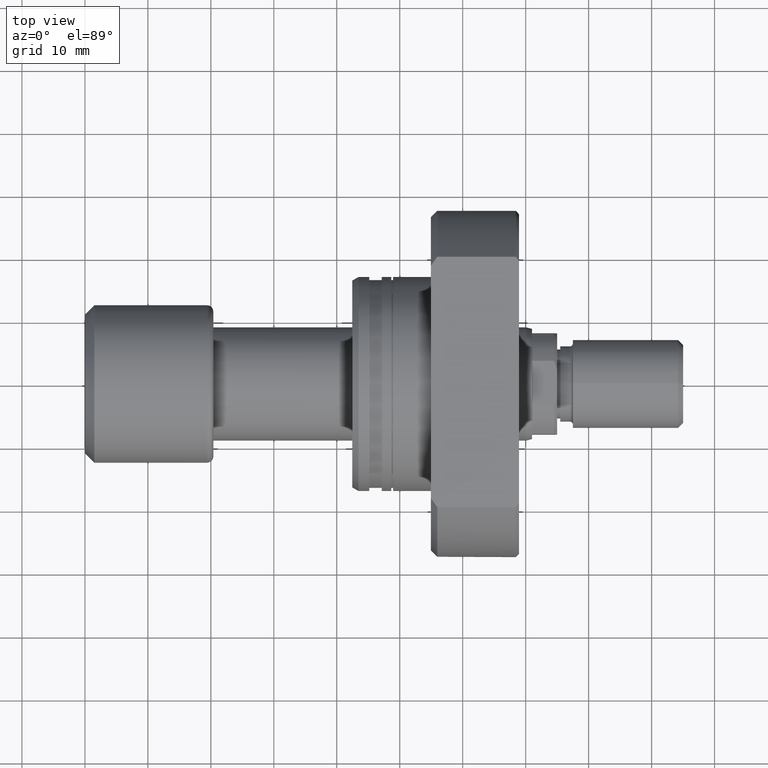
[diagram: clean part render]
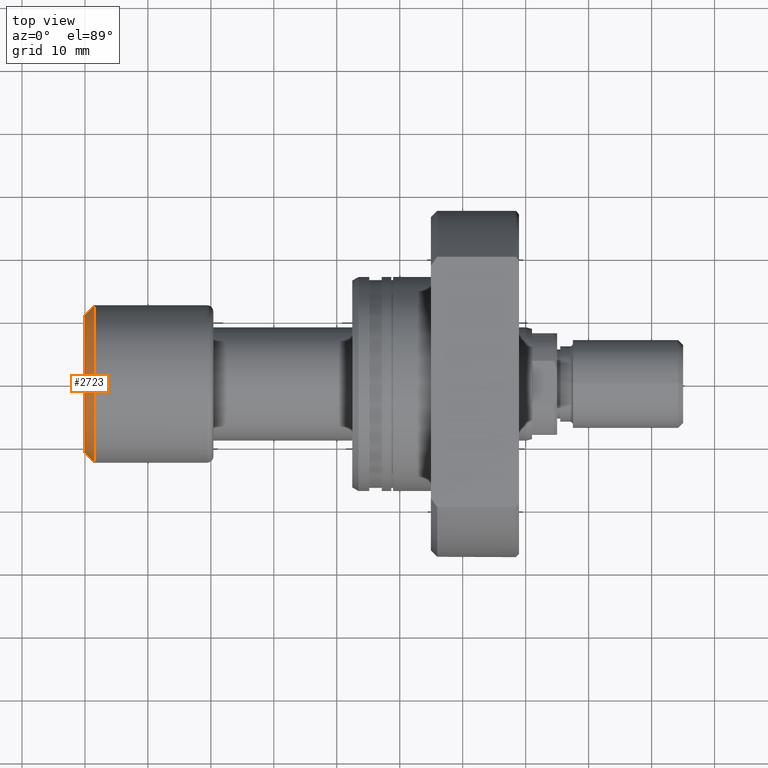
[diagram: same view with one face highlighted and labeled with its STEP entity id]
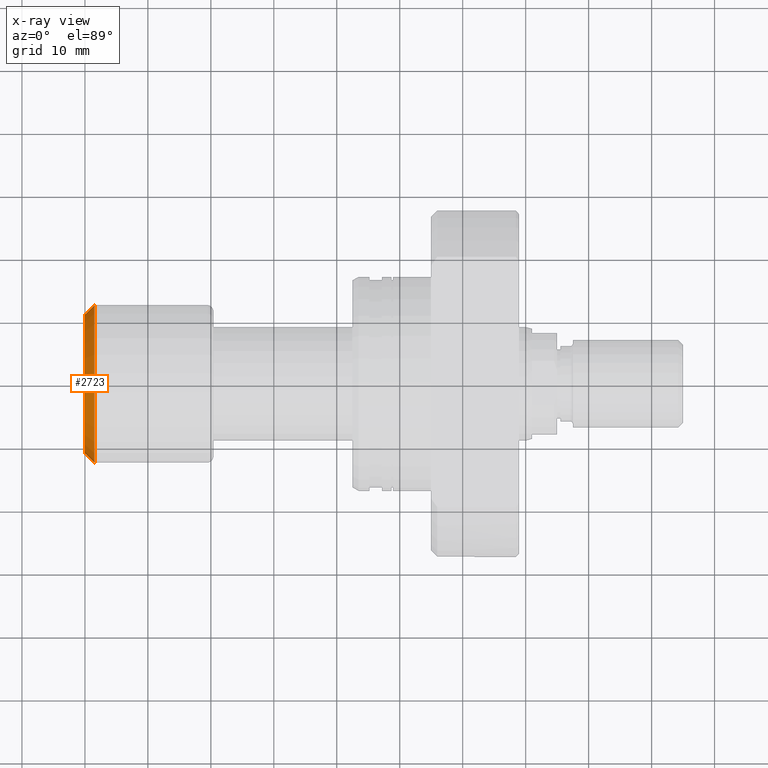
[diagram: x-ray of the same camera — body ghosted, the highlighted face saturated]
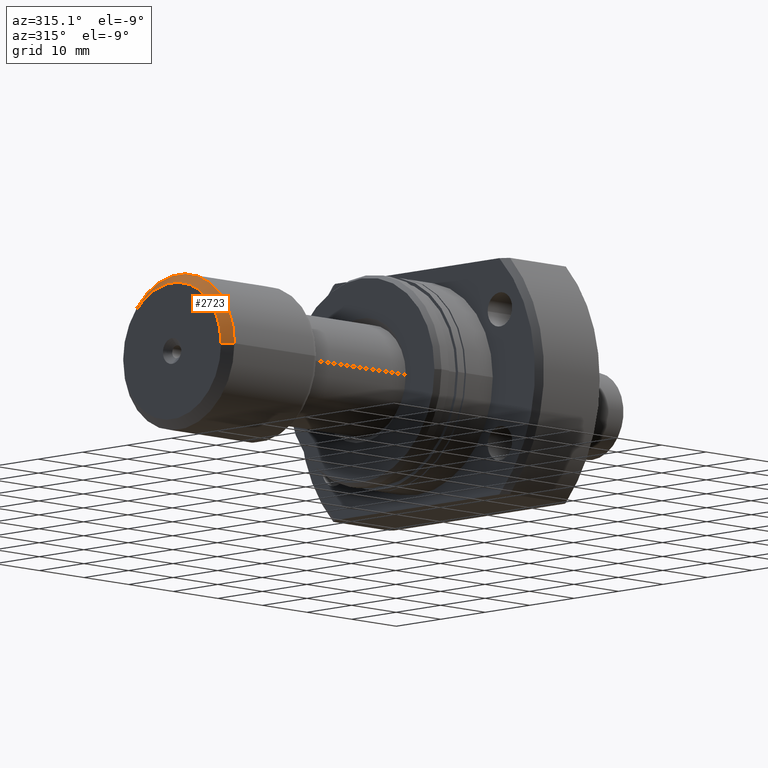
[diagram: same view with one face highlighted and labeled with its STEP entity id]
A machine part, top view. The second image highlights one B-rep face of the part: STEP entity #2723.
The next image is the same camera in x-ray: the body ghosted, the highlighted face saturated — about 0% of this face is hidden behind the body in this view.
A second angle (auxiliary view) of the same face is appended — the face is thin or edge-on in the first view.
In plain terms, the highlighted conical surface has half-angle 45 deg.
Its self-contained STEP definition (entity closure, byte-faithful):
#85 = LINE ( 'NONE', #344, #186 ) ;
#186 = VECTOR ( 'NONE', #1453, 999.9999999999998863 ) ;
#196 = EDGE_CURVE ( 'NONE', #1066, #3051, #1685, .T. ) ;
#344 = CARTESIAN_POINT ( 'NONE',  ( 1.347111479062088602E-15, -11.00000000000000178, 1.347111479062088602E-15 ) ) ;
#412 = CONICAL_SURFACE ( 'NONE', #2857, 11.00000000000000178, 0.7853981633974480570 ) ;
#436 = CARTESIAN_POINT ( 'NONE',  ( 1.347111479062088602E-15, -11.00000000000000178, 1.438959988998140160E-15 ) ) ;
#614 = DIRECTION ( 'NONE',  ( 0.7071067811865477948, 0.7071067811865473507, 0.000000000000000000 ) ) ;
#929 = DIRECTION ( 'NONE',  ( 1.734723475976807094E-17, -1.000000000000000000, 0.000000000000000000 ) ) ;
#935 = ORIENTED_EDGE ( 'NONE', *, *, #3603, .T. ) ;
#1066 = VERTEX_POINT ( 'NONE', #436 ) ;
#1164 = VERTEX_POINT ( 'NONE', #3608 ) ;
#1219 = DIRECTION ( 'NONE',  ( 1.069542322069065647E-17, -1.000000000000000000, 0.000000000000000000 ) ) ;
#1245 = LINE ( 'NONE', #3494, #2446 ) ;
#1289 = FACE_OUTER_BOUND ( 'NONE', #2633, .T. ) ;
#1418 = ORIENTED_EDGE ( 'NONE', *, *, #2574, .F. ) ;
#1453 = DIRECTION ( 'NONE',  ( 0.7071067811865477948, -0.7071067811865473507, 8.659560562354931626E-17 ) ) ;
#1561 = AXIS2_PLACEMENT_3D ( 'NONE', #2067, #1766, #929 ) ;
#1590 = DIRECTION ( 'NONE',  ( 1.000000000000000000, 1.069542322069065801E-17, 0.000000000000000000 ) ) ;
#1624 = CARTESIAN_POINT ( 'NONE',  ( 1.229461823634491368E-15, 1.314961453745302249E-32, 0.000000000000000000 ) ) ;
#1685 = CIRCLE ( 'NONE', #3020, 11.00000000000000178 ) ;
#1766 = DIRECTION ( 'NONE',  ( -1.000000000000000000, -1.069542322069065801E-17, -0.000000000000000000 ) ) ;
#1924 = DIRECTION ( 'NONE',  ( -1.069542322069065647E-17, 1.000000000000000000, 0.000000000000000000 ) ) ;
#2067 = CARTESIAN_POINT ( 'NONE',  ( 1.500000000000001554, 1.604313483103600319E-17, 0.000000000000000000 ) ) ;
#2217 = ORIENTED_EDGE ( 'NONE', *, *, #2551, .T. ) ;
#2446 = VECTOR ( 'NONE', #614, 999.9999999999998863 ) ;
#2543 = ORIENTED_EDGE ( 'NONE', *, *, #196, .F. ) ;
#2551 = EDGE_CURVE ( 'NONE', #2701, #1164, #3152, .T. ) ;
#2574 = EDGE_CURVE ( 'NONE', #3051, #1164, #1245, .T. ) ;
#2597 = CARTESIAN_POINT ( 'NONE',  ( 1.111812168206894135E-15, 11.00000000000000178, 0.000000000000000000 ) ) ;
#2618 = DIRECTION ( 'NONE',  ( -1.000000000000000000, -1.069542322069065801E-17, -0.000000000000000000 ) ) ;
#2633 = EDGE_LOOP ( 'NONE', ( #2543, #935, #2217, #1418 ) ) ;
#2701 = VERTEX_POINT ( 'NONE', #3599 ) ;
#2723 = ADVANCED_FACE ( 'NONE', ( #1289 ), #412, .T. ) ;
#2857 = AXIS2_PLACEMENT_3D ( 'NONE', #1624, #1590, #1924 ) ;
#2892 = CARTESIAN_POINT ( 'NONE',  ( 1.229461823634491368E-15, 1.314961453745302249E-32, 0.000000000000000000 ) ) ;
#3020 = AXIS2_PLACEMENT_3D ( 'NONE', #2892, #2618, #1219 ) ;
#3051 = VERTEX_POINT ( 'NONE', #2597 ) ;
#3152 = CIRCLE ( 'NONE', #1561, 12.50000000000000000 ) ;
#3494 = CARTESIAN_POINT ( 'NONE',  ( 1.111812168206894135E-15, 11.00000000000000178, 0.000000000000000000 ) ) ;
#3599 = CARTESIAN_POINT ( 'NONE',  ( 1.500000000000001776, -12.50000000000000000, 1.530808498934191521E-15 ) ) ;
#3603 = EDGE_CURVE ( 'NONE', #1066, #2701, #85, .T. ) ;
#3608 = CARTESIAN_POINT ( 'NONE',  ( 1.500000000000001332, 12.50000000000000000, 0.000000000000000000 ) ) ;